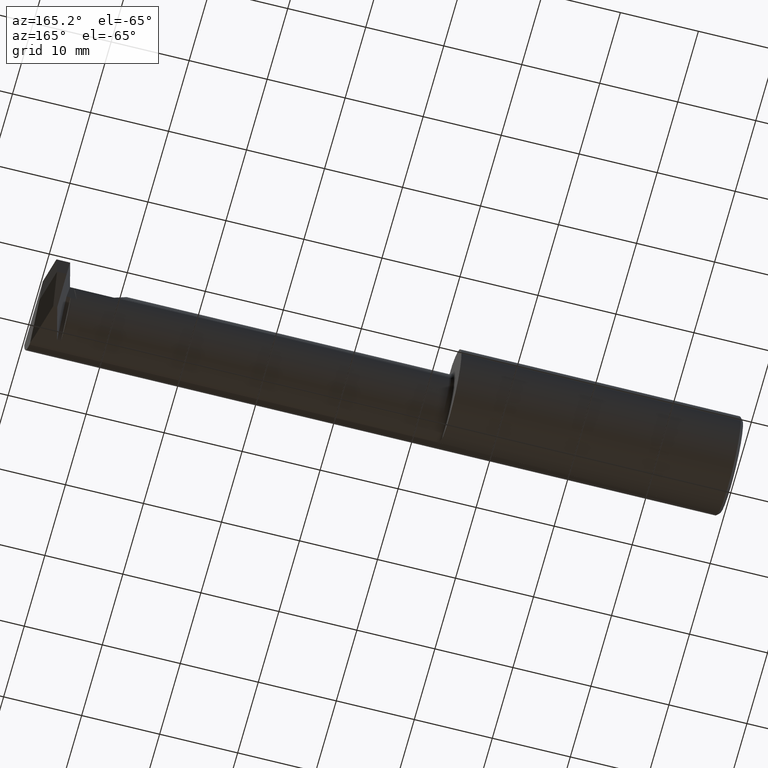
[diagram: clean part render]
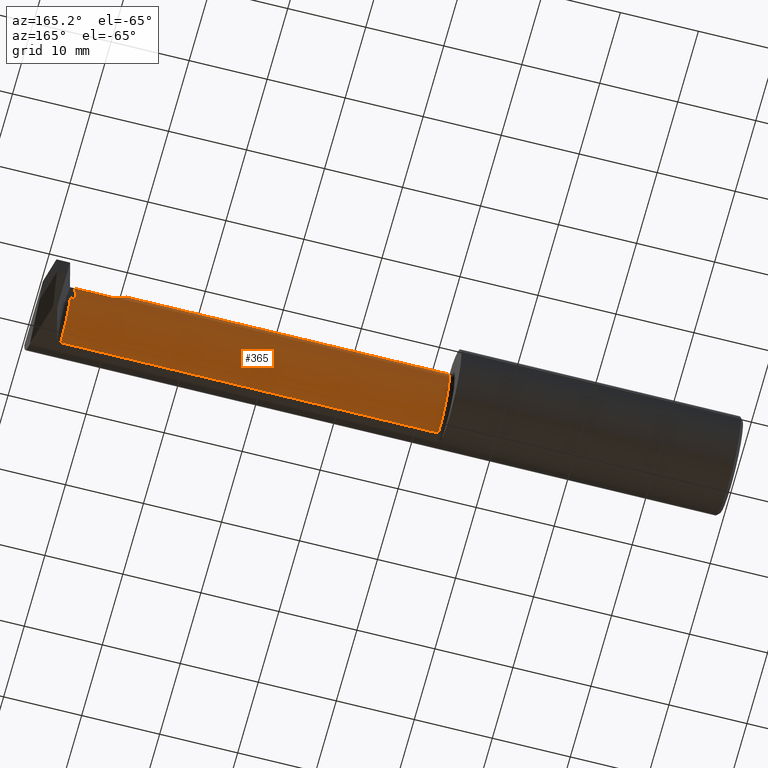
[diagram: same view with one face highlighted and labeled with its STEP entity id]
A machine part, auxiliary view. The second image highlights one B-rep face of the part: STEP entity #365.
In plain terms, the highlighted cylindrical surface (partial cylindrical patch) has radius 5.2578 mm, axis along (-1, -0, -0).
Its self-contained STEP definition (entity closure, byte-faithful):
#11 = VECTOR ( 'NONE', #416, 39.37007874015748143 ) ;
#13 = EDGE_CURVE ( 'NONE', #912, #92, #97, .T. ) ;
#19 = CARTESIAN_POINT ( 'NONE',  ( 3.356905148354086155, 0.09266310188211818177, -0.08326934739156952037 ) ) ;
#20 = ORIENTED_EDGE ( 'NONE', *, *, #381, .F. ) ;
#33 = CARTESIAN_POINT ( 'NONE',  ( 3.331941729141267849, 0.1042368812308372000, -0.05692852818758709771 ) ) ;
#36 = ORIENTED_EDGE ( 'NONE', *, *, #81, .T. ) ;
#40 = ORIENTED_EDGE ( 'NONE', *, *, #13, .T. ) ;
#48 = VECTOR ( 'NONE', #220, 39.37007874015748143 ) ;
#51 = DIRECTION ( 'NONE',  ( -1.000000000000000000, -0.000000000000000000, -0.000000000000000000 ) ) ;
#73 = ORIENTED_EDGE ( 'NONE', *, *, #872, .F. ) ;
#75 = CARTESIAN_POINT ( 'NONE',  ( 1.424999999999999600, 0.1101499999999999979, -6.123031769111886291E-17 ) ) ;
#81 = EDGE_CURVE ( 'NONE', #468, #499, #285, .T. ) ;
#92 = VERTEX_POINT ( 'NONE', #868 ) ;
#94 = CARTESIAN_POINT ( 'NONE',  ( 1.449999999999999512, -0.09685000000000000553, 0.000000000000000000 ) ) ;
#97 = CIRCLE ( 'NONE', #700, 0.2070000000000000173 ) ;
#107 = ORIENTED_EDGE ( 'NONE', *, *, #849, .T. ) ;
#113 = EDGE_CURVE ( 'NONE', #845, #523, #638, .T. ) ;
#116 = EDGE_CURVE ( 'NONE', #491, #724, #437, .T. ) ;
#133 = CARTESIAN_POINT ( 'NONE',  ( 1.424999999999999600, -0.09685000000000000553, 0.2070000000000000173 ) ) ;
#143 = CARTESIAN_POINT ( 'NONE',  ( 2.934349999999999348, -0.09685000000000000553, 0.2070000000000000173 ) ) ;
#144 = EDGE_CURVE ( 'NONE', #491, #468, #412, .T. ) ;
#147 =( BOUNDED_CURVE ( )  B_SPLINE_CURVE ( 3, ( #864, #294, #425, #143 ),
 .UNSPECIFIED., .F., .T. ) 
 B_SPLINE_CURVE_WITH_KNOTS ( ( 4, 4 ),
 ( 4.718910765747612146, 6.283185307179586232 ),
 .UNSPECIFIED. ) 
 CURVE ( )  GEOMETRIC_REPRESENTATION_ITEM ( )  RATIONAL_B_SPLINE_CURVE ( ( 1.000000000000000000, 0.8062725446327766443, 0.8062725446327766443, 1.000000000000000000 ) ) 
 REPRESENTATION_ITEM ( '' )  );
#149 = CARTESIAN_POINT ( 'NONE',  ( 3.359999999999999876, -0.09685000000000000553, 0.000000000000000000 ) ) ;
#177 = VECTOR ( 'NONE', #224, 39.37007874015748143 ) ;
#191 = DIRECTION ( 'NONE',  ( -1.000000000000000000, -0.000000000000000000, -0.000000000000000000 ) ) ;
#220 = DIRECTION ( 'NONE',  ( 1.000000000000000000, 0.000000000000000000, 0.000000000000000000 ) ) ;
#224 = DIRECTION ( 'NONE',  ( -1.000000000000000000, -0.000000000000000000, -0.000000000000000000 ) ) ;
#278 = ORIENTED_EDGE ( 'NONE', *, *, #363, .T. ) ;
#279 = CARTESIAN_POINT ( 'NONE',  ( 1.424999999999999600, -0.08773859972320467715, -0.2067993771388008939 ) ) ;
#285 = LINE ( 'NONE', #279, #292 ) ;
#289 = DIRECTION ( 'NONE',  ( 0.000000000000000000, 0.000000000000000000, 1.000000000000000000 ) ) ;
#292 = VECTOR ( 'NONE', #574, 39.37007874015748143 ) ;
#294 = CARTESIAN_POINT ( 'NONE',  ( 3.019370878431648197, 0.1093588693857058258, 0.1219791215683498214 ) ) ;
#297 = DIRECTION ( 'NONE',  ( 0.000000000000000000, 0.000000000000000000, 1.000000000000000000 ) ) ;
#300 = CARTESIAN_POINT ( 'NONE',  ( 3.139999999999999680, 0.1101455977792765162, 0.001349999999998470696 ) ) ;
#303 = VERTEX_POINT ( 'NONE', #697 ) ;
#353 = FACE_OUTER_BOUND ( 'NONE', #871, .T. ) ;
#362 = CARTESIAN_POINT ( 'NONE',  ( 3.359999999999999876, -0.09685000000000001941, -0.2069999999999999341 ) ) ;
#363 = EDGE_CURVE ( 'NONE', #92, #744, #796, .T. ) ;
#364 = ORIENTED_EDGE ( 'NONE', *, *, #144, .T. ) ;
#365 = ADVANCED_FACE ( 'NONE', ( #353 ), #642, .T. ) ;
#381 = EDGE_CURVE ( 'NONE', #912, #303, #147, .T. ) ;
#395 = ORIENTED_EDGE ( 'NONE', *, *, #538, .F. ) ;
#412 = CIRCLE ( 'NONE', #848, 0.2070000000000000173 ) ;
#416 = DIRECTION ( 'NONE',  ( -1.000000000000000000, -0.000000000000000000, -0.000000000000000000 ) ) ;
#425 = CARTESIAN_POINT ( 'NONE',  ( 2.934349999999999348, 0.02378168701430542764, 0.2070000000000000173 ) ) ;
#434 = CARTESIAN_POINT ( 'NONE',  ( 3.343896949202450841, 0.1101499999999999840, 0.000000000000000000 ) ) ;
#436 = VERTEX_POINT ( 'NONE', #722 ) ;
#437 = LINE ( 'NONE', #565, #793 ) ;
#448 = CARTESIAN_POINT ( 'NONE',  ( 3.326410051084569108, 0.09266310188211822341, -0.08326934739156954812 ) ) ;
#451 = AXIS2_PLACEMENT_3D ( 'NONE', #94, #668, #519 ) ;
#456 = CARTESIAN_POINT ( 'NONE',  ( 3.356905148354086155, -0.08773859972320421918, -0.2067993771388023372 ) ) ;
#468 = VERTEX_POINT ( 'NONE', #456 ) ;
#480 = EDGE_CURVE ( 'NONE', #523, #436, #483, .T. ) ;
#483 = CIRCLE ( 'NONE', #451, 0.2070000000000000173 ) ;
#485 = DIRECTION ( 'NONE',  ( 0.000000000000000000, 1.814633329124812327E-15, -1.000000000000000000 ) ) ;
#491 = VERTEX_POINT ( 'NONE', #19 ) ;
#499 = VERTEX_POINT ( 'NONE', #891 ) ;
#505 = ORIENTED_EDGE ( 'NONE', *, *, #113, .T. ) ;
#519 = DIRECTION ( 'NONE',  ( 0.000000000000000000, 0.000000000000000000, -1.000000000000000000 ) ) ;
#523 = VERTEX_POINT ( 'NONE', #740 ) ;
#533 = CARTESIAN_POINT ( 'NONE',  ( 3.337854847910430411, 0.1101499999999999979, -0.02877135945258273153 ) ) ;
#538 = EDGE_CURVE ( 'NONE', #724, #744, #703, .T. ) ;
#565 = CARTESIAN_POINT ( 'NONE',  ( 1.425000000000000044, 0.09266310188212133203, -0.08326934739156235943 ) ) ;
#574 = DIRECTION ( 'NONE',  ( 1.000000000000000000, 0.000000000000000000, 0.000000000000000000 ) ) ;
#619 = ORIENTED_EDGE ( 'NONE', *, *, #116, .F. ) ;
#638 = LINE ( 'NONE', #926, #177 ) ;
#642 = CYLINDRICAL_SURFACE ( 'NONE', #943, 0.2070000000000000173 ) ;
#659 = DIRECTION ( 'NONE',  ( -1.000000000000000000, -0.000000000000000000, -0.000000000000000000 ) ) ;
#668 = DIRECTION ( 'NONE',  ( 1.000000000000000000, 0.000000000000000000, 0.000000000000000000 ) ) ;
#670 = CARTESIAN_POINT ( 'NONE',  ( 3.343896949202450841, 0.1101499999999999840, 0.000000000000000000 ) ) ;
#696 = CARTESIAN_POINT ( 'NONE',  ( 3.139999999999999680, -0.09685000000000000553, 0.000000000000000000 ) ) ;
#697 = CARTESIAN_POINT ( 'NONE',  ( 2.934349999999999348, -0.09685000000000000553, 0.2070000000000000173 ) ) ;
#700 = AXIS2_PLACEMENT_3D ( 'NONE', #696, #51, #779 ) ;
#703 =( BOUNDED_CURVE ( )  B_SPLINE_CURVE ( 3, ( #448, #33, #533, #670 ),
 .UNSPECIFIED., .F., .T. ) 
 B_SPLINE_CURVE_WITH_KNOTS ( ( 4, 4 ),
 ( 1.156804228221824715, 1.570796326794882569 ),
 .UNSPECIFIED. ) 
 CURVE ( )  GEOMETRIC_REPRESENTATION_ITEM ( )  RATIONAL_B_SPLINE_CURVE ( ( 1.000000000000000000, 0.9857684695413670983, 0.9857684695413670983, 1.000000000000000000 ) ) 
 REPRESENTATION_ITEM ( '' )  );
#722 = CARTESIAN_POINT ( 'NONE',  ( 1.449999999999999512, -0.09685000000000000553, 0.2070000000000000173 ) ) ;
#724 = VERTEX_POINT ( 'NONE', #843 ) ;
#740 = CARTESIAN_POINT ( 'NONE',  ( 1.449999999999999512, -0.09684999999999999165, -0.2070000000000000173 ) ) ;
#744 = VERTEX_POINT ( 'NONE', #434 ) ;
#771 = CARTESIAN_POINT ( 'NONE',  ( 3.356905148354086155, -0.09685000000000000553, 0.000000000000000000 ) ) ;
#779 = DIRECTION ( 'NONE',  ( 0.000000000000000000, 0.000000000000000000, 1.000000000000000000 ) ) ;
#780 = DIRECTION ( 'NONE',  ( -1.000000000000000000, -0.000000000000000000, -0.000000000000000000 ) ) ;
#782 = LINE ( 'NONE', #133, #11 ) ;
#793 = VECTOR ( 'NONE', #780, 39.37007874015748143 ) ;
#796 = LINE ( 'NONE', #75, #48 ) ;
#843 = CARTESIAN_POINT ( 'NONE',  ( 3.326410051084569108, 0.09266310188211822341, -0.08326934739156954812 ) ) ;
#845 = VERTEX_POINT ( 'NONE', #362 ) ;
#848 = AXIS2_PLACEMENT_3D ( 'NONE', #771, #191, #485 ) ;
#849 = EDGE_CURVE ( 'NONE', #499, #845, #922, .T. ) ;
#864 = CARTESIAN_POINT ( 'NONE',  ( 3.139999999999999680, 0.1101455977792765162, 0.001349999999998470696 ) ) ;
#868 = CARTESIAN_POINT ( 'NONE',  ( 3.139999999999999680, 0.1101499999999999702, -6.123031769111885058E-17 ) ) ;
#871 = EDGE_LOOP ( 'NONE', ( #107, #505, #892, #73, #20, #40, #278, #395, #619, #364, #36 ) ) ;
#872 = EDGE_CURVE ( 'NONE', #303, #436, #782, .T. ) ;
#874 = DIRECTION ( 'NONE',  ( -1.000000000000000000, -0.000000000000000000, -0.000000000000000000 ) ) ;
#880 = AXIS2_PLACEMENT_3D ( 'NONE', #149, #874, #297 ) ;
#891 = CARTESIAN_POINT ( 'NONE',  ( 3.359999999999999876, -0.08773859972320201261, -0.2067993771388007829 ) ) ;
#892 = ORIENTED_EDGE ( 'NONE', *, *, #480, .T. ) ;
#912 = VERTEX_POINT ( 'NONE', #300 ) ;
#922 = CIRCLE ( 'NONE', #880, 0.2070000000000000173 ) ;
#926 = CARTESIAN_POINT ( 'NONE',  ( 1.424999999999999600, -0.09684999999999999165, -0.2070000000000000173 ) ) ;
#943 = AXIS2_PLACEMENT_3D ( 'NONE', #944, #659, #289 ) ;
#944 = CARTESIAN_POINT ( 'NONE',  ( 1.424999999999999600, -0.09685000000000000553, 0.000000000000000000 ) ) ;